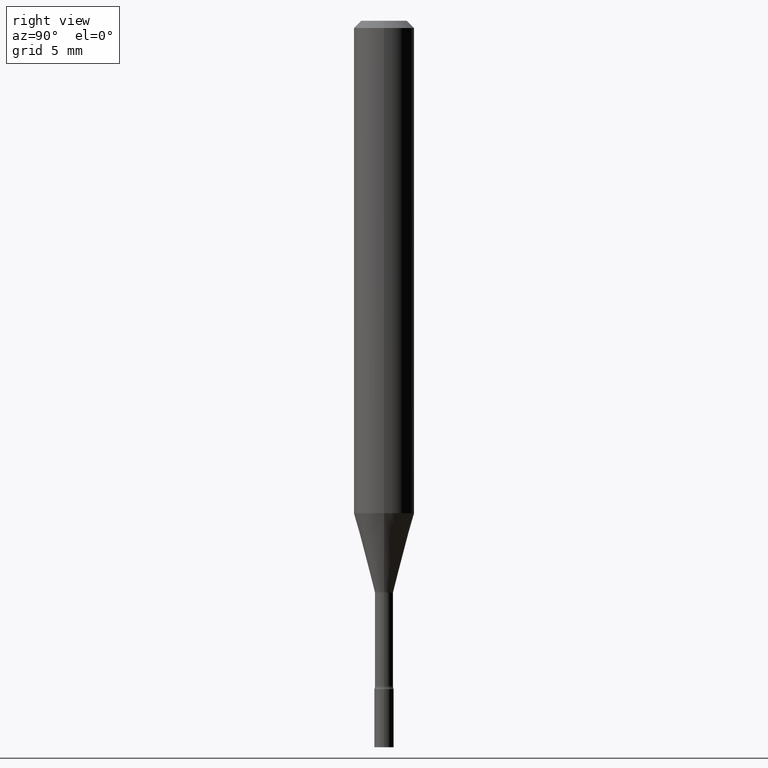
[diagram: clean part render]
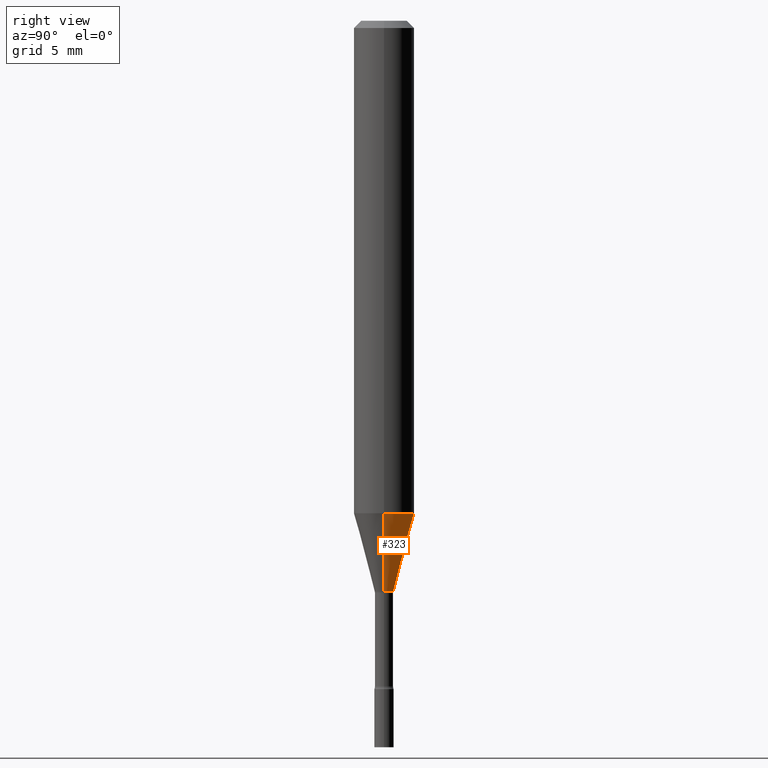
[diagram: same view with one face highlighted and labeled with its STEP entity id]
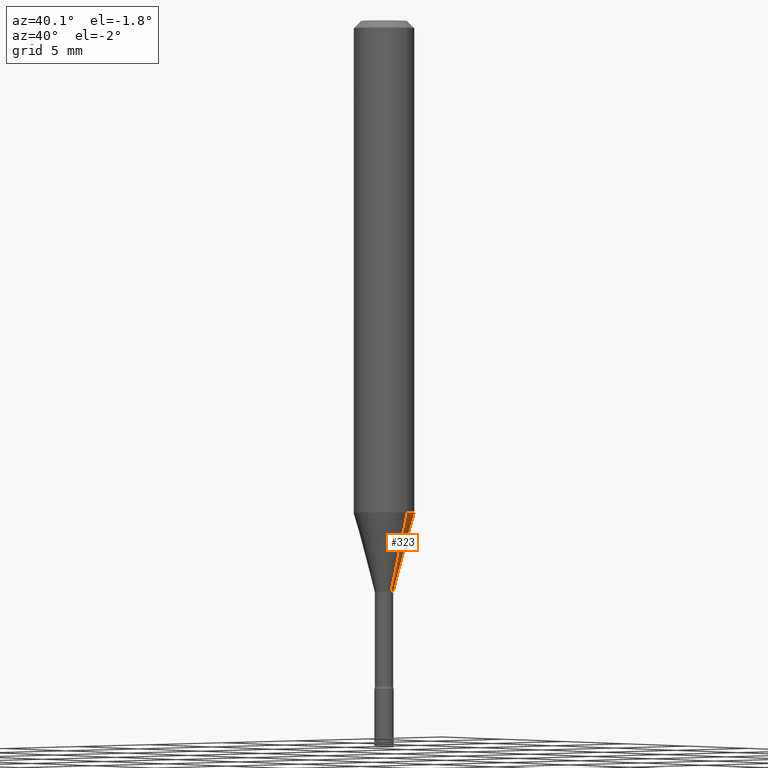
[diagram: same view with one face highlighted and labeled with its STEP entity id]
A machine part, right view. The second image highlights one B-rep face of the part: STEP entity #323.
A second angle (auxiliary view) of the same face is appended — the face is thin or edge-on in the first view.
In plain terms, the highlighted conical surface has half-angle 15 deg.
Its self-contained STEP definition (entity closure, byte-faithful):
#11 = ORIENTED_EDGE ( 'NONE', *, *, #88, .F. ) ;
#19 = CARTESIAN_POINT ( 'NONE',  ( 2.486820166796024310E-29, -3.550520122549371978E-15, -1.016909379709240557 ) ) ;
#30 = EDGE_CURVE ( 'NONE', #38, #234, #160, .T. ) ;
#35 = DIRECTION ( 'NONE',  ( -2.445468806185136597E-29, 3.491481338843145583E-15, 1.000000000000000000 ) ) ;
#38 = VERTEX_POINT ( 'NONE', #162 ) ;
#86 = EDGE_CURVE ( 'NONE', #104, #234, #328, .T. ) ;
#88 = EDGE_CURVE ( 'NONE', #394, #104, #287, .T. ) ;
#90 = VECTOR ( 'NONE', #439, 39.37007874015747433 ) ;
#92 = EDGE_LOOP ( 'NONE', ( #392, #117, #489, #11 ) ) ;
#102 = CARTESIAN_POINT ( 'NONE',  ( -0.06250000000000000000, -3.106430912699309362E-15, -1.016909379709240557 ) ) ;
#104 = VERTEX_POINT ( 'NONE', #441 ) ;
#113 = DIRECTION ( 'NONE',  ( 1.000000000000000000, -6.982962677686273021E-15, 0.000000000000000000 ) ) ;
#117 = ORIENTED_EDGE ( 'NONE', *, *, #30, .T. ) ;
#122 = DIRECTION ( 'NONE',  ( 0.2588190451025213501, 1.565188264969621968E-15, 0.9659258262890682012 ) ) ;
#126 = DIRECTION ( 'NONE',  ( 1.000000000000000000, -6.982962677686270655E-15, 0.000000000000000000 ) ) ;
#151 = CARTESIAN_POINT ( 'NONE',  ( 2.880988463921384240E-29, -4.113287985421300432E-15, -1.178092501787273427 ) ) ;
#160 = LINE ( 'NONE', #208, #90 ) ;
#162 = CARTESIAN_POINT ( 'NONE',  ( -0.01931111260566394788, -3.541252595153305287E-15, -1.178092501787273427 ) ) ;
#182 = DIRECTION ( 'NONE',  ( -2.445468806185136597E-29, 3.491481338843145583E-15, 1.000000000000000000 ) ) ;
#183 = CIRCLE ( 'NONE', #371, 0.01931111260566394788 ) ;
#208 = CARTESIAN_POINT ( 'NONE',  ( -0.01931111260566394788, -3.976074277607302002E-15, -1.178092501787273427 ) ) ;
#230 = DIRECTION ( 'NONE',  ( 1.000000000000000000, -6.982962677686273021E-15, 0.000000000000000000 ) ) ;
#234 = VERTEX_POINT ( 'NONE', #102 ) ;
#287 = LINE ( 'NONE', #447, #463 ) ;
#302 = EDGE_CURVE ( 'NONE', #394, #38, #183, .T. ) ;
#307 = CARTESIAN_POINT ( 'NONE',  ( 0.01931111260566394788, -4.248136764011248280E-15, -1.178092501787273427 ) ) ;
#309 = CARTESIAN_POINT ( 'NONE',  ( 2.880988463921384240E-29, -4.113287985421300432E-15, -1.178092501787273427 ) ) ;
#323 = ADVANCED_FACE ( 'NONE', ( #425 ), #419, .T. ) ;
#328 = CIRCLE ( 'NONE', #396, 0.06250000000000000000 ) ;
#336 = AXIS2_PLACEMENT_3D ( 'NONE', #309, #35, #113 ) ;
#371 = AXIS2_PLACEMENT_3D ( 'NONE', #151, #182, #230 ) ;
#392 = ORIENTED_EDGE ( 'NONE', *, *, #302, .T. ) ;
#394 = VERTEX_POINT ( 'NONE', #307 ) ;
#396 = AXIS2_PLACEMENT_3D ( 'NONE', #19, #486, #126 ) ;
#419 = CONICAL_SURFACE ( 'NONE', #336, 0.01931111260566394788, 0.2617993877991500740 ) ;
#425 = FACE_OUTER_BOUND ( 'NONE', #92, .T. ) ;
#439 = DIRECTION ( 'NONE',  ( -0.2588190451025213501, 5.211531920934551042E-15, 0.9659258262890682012 ) ) ;
#441 = CARTESIAN_POINT ( 'NONE',  ( 0.06250000000000000000, -3.986955289904763647E-15, -1.016909379709240557 ) ) ;
#447 = CARTESIAN_POINT ( 'NONE',  ( 0.01931111260566394788, -4.248136764011248280E-15, -1.178092501787273427 ) ) ;
#463 = VECTOR ( 'NONE', #122, 39.37007874015747433 ) ;
#486 = DIRECTION ( 'NONE',  ( -2.445468806185136597E-29, 3.491481338843145583E-15, 1.000000000000000000 ) ) ;
#489 = ORIENTED_EDGE ( 'NONE', *, *, #86, .F. ) ;